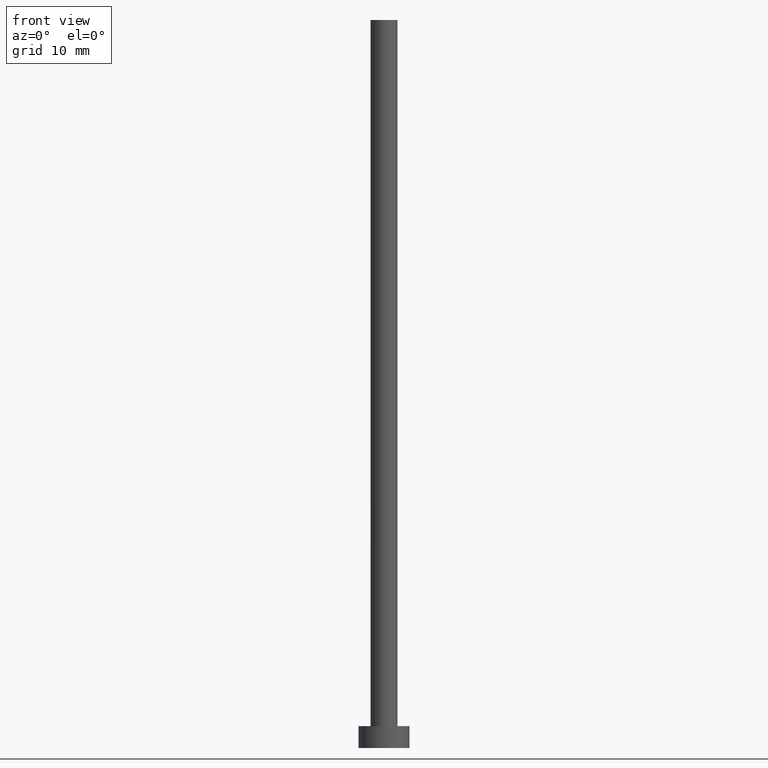
[diagram: clean part render]
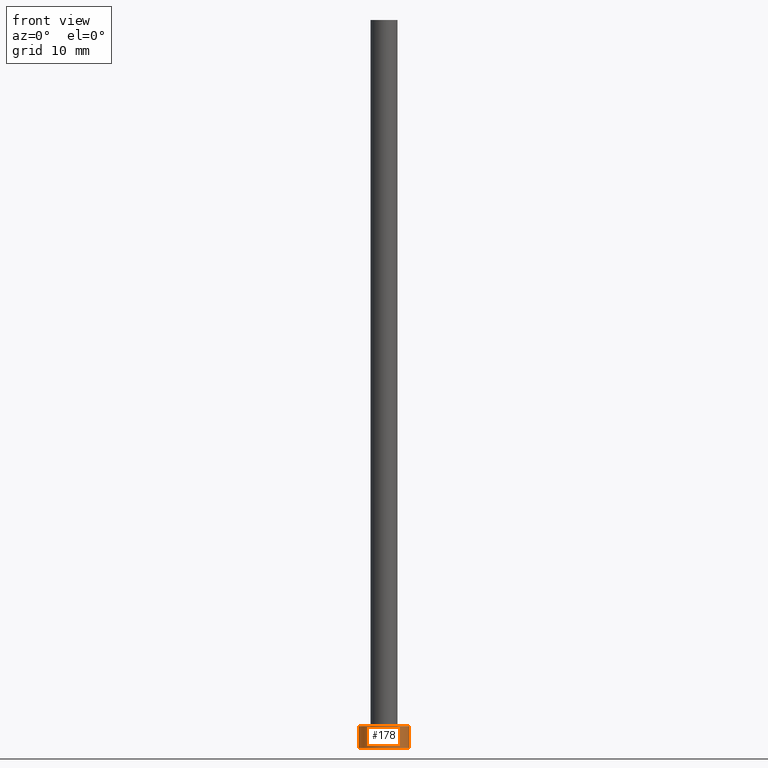
[diagram: same view with one face highlighted and labeled with its STEP entity id]
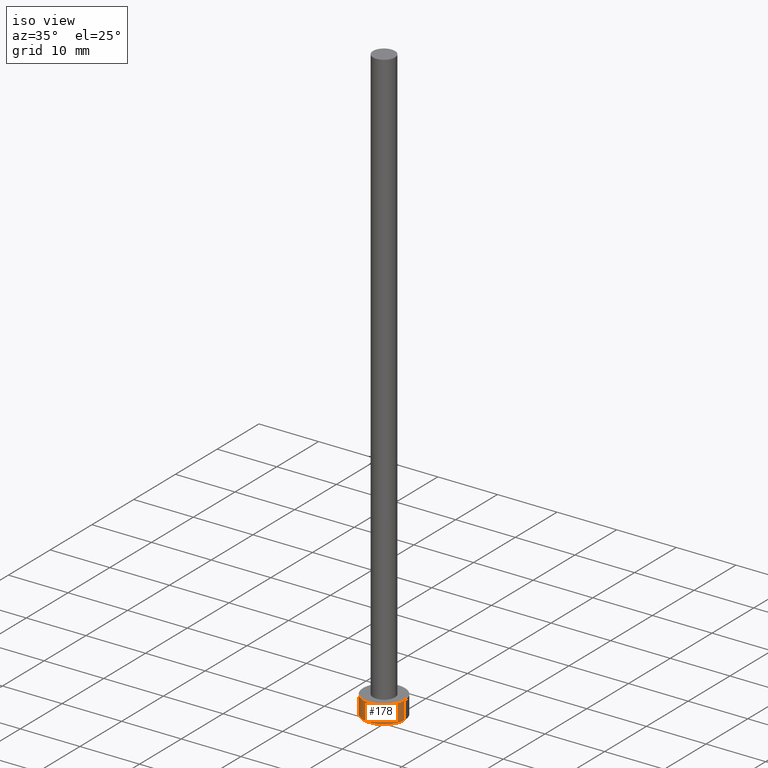
[diagram: same view with one face highlighted and labeled with its STEP entity id]
A machine part, front view. The second image highlights one B-rep face of the part: STEP entity #178.
A second angle (iso view) of the same face is appended — the face is thin or edge-on in the first view.
In plain terms, the highlighted cylindrical surface (edge-blend (fillet) strip) has radius 3.5 mm, axis along (-0, -0, -1).
Its self-contained STEP definition (entity closure, byte-faithful):
#2 = CARTESIAN_POINT ( 'NONE',  ( 3.500000000000000444, 4.286263797015737088E-16, 3.000000000000000000 ) ) ;
#14 = CIRCLE ( 'NONE', #211, 3.500000000000000444 ) ;
#22 = EDGE_CURVE ( 'NONE', #85, #244, #105, .T. ) ;
#25 = DIRECTION ( 'NONE',  ( 0.000000000000000000, 0.000000000000000000, 1.000000000000000000 ) ) ;
#46 = ORIENTED_EDGE ( 'NONE', *, *, #103, .F. ) ;
#51 = CARTESIAN_POINT ( 'NONE',  ( 0.000000000000000000, 0.000000000000000000, 0.000000000000000000 ) ) ;
#56 = DIRECTION ( 'NONE',  ( 1.000000000000000000, 0.000000000000000000, 0.000000000000000000 ) ) ;
#67 = CARTESIAN_POINT ( 'NONE',  ( -3.500000000000000444, 0.000000000000000000, 3.000000000000000000 ) ) ;
#69 = CARTESIAN_POINT ( 'NONE',  ( 3.500000000000000444, 4.286263797015737088E-16, 0.000000000000000000 ) ) ;
#71 = DIRECTION ( 'NONE',  ( -1.000000000000000000, 0.000000000000000000, 0.000000000000000000 ) ) ;
#73 = FACE_OUTER_BOUND ( 'NONE', #127, .T. ) ;
#85 = VERTEX_POINT ( 'NONE', #252 ) ;
#90 = CARTESIAN_POINT ( 'NONE',  ( 0.000000000000000000, 0.000000000000000000, 3.000000000000000000 ) ) ;
#93 = EDGE_CURVE ( 'NONE', #166, #168, #157, .T. ) ;
#103 = EDGE_CURVE ( 'NONE', #166, #85, #14, .T. ) ;
#105 = LINE ( 'NONE', #2, #123 ) ;
#108 = AXIS2_PLACEMENT_3D ( 'NONE', #195, #246, #71 ) ;
#123 = VECTOR ( 'NONE', #242, 1000.000000000000000 ) ;
#127 = EDGE_LOOP ( 'NONE', ( #202, #46, #221, #130 ) ) ;
#130 = ORIENTED_EDGE ( 'NONE', *, *, #185, .T. ) ;
#157 = LINE ( 'NONE', #229, #238 ) ;
#166 = VERTEX_POINT ( 'NONE', #67 ) ;
#168 = VERTEX_POINT ( 'NONE', #210 ) ;
#173 = CYLINDRICAL_SURFACE ( 'NONE', #108, 3.500000000000000444 ) ;
#178 = ADVANCED_FACE ( 'NONE', ( #73 ), #173, .T. ) ;
#179 = DIRECTION ( 'NONE',  ( -0.000000000000000000, -0.000000000000000000, -1.000000000000000000 ) ) ;
#185 = EDGE_CURVE ( 'NONE', #168, #244, #250, .T. ) ;
#195 = CARTESIAN_POINT ( 'NONE',  ( 0.000000000000000000, 0.000000000000000000, 3.000000000000000000 ) ) ;
#202 = ORIENTED_EDGE ( 'NONE', *, *, #22, .F. ) ;
#210 = CARTESIAN_POINT ( 'NONE',  ( -3.500000000000000444, 0.000000000000000000, 0.000000000000000000 ) ) ;
#211 = AXIS2_PLACEMENT_3D ( 'NONE', #90, #25, #56 ) ;
#213 = DIRECTION ( 'NONE',  ( 1.000000000000000000, 0.000000000000000000, 0.000000000000000000 ) ) ;
#215 = DIRECTION ( 'NONE',  ( 0.000000000000000000, 0.000000000000000000, 1.000000000000000000 ) ) ;
#221 = ORIENTED_EDGE ( 'NONE', *, *, #93, .T. ) ;
#226 = AXIS2_PLACEMENT_3D ( 'NONE', #51, #215, #213 ) ;
#229 = CARTESIAN_POINT ( 'NONE',  ( -3.500000000000000444, 0.000000000000000000, 3.000000000000000000 ) ) ;
#238 = VECTOR ( 'NONE', #179, 1000.000000000000000 ) ;
#242 = DIRECTION ( 'NONE',  ( -0.000000000000000000, -0.000000000000000000, -1.000000000000000000 ) ) ;
#244 = VERTEX_POINT ( 'NONE', #69 ) ;
#246 = DIRECTION ( 'NONE',  ( -0.000000000000000000, -0.000000000000000000, -1.000000000000000000 ) ) ;
#250 = CIRCLE ( 'NONE', #226, 3.500000000000000444 ) ;
#252 = CARTESIAN_POINT ( 'NONE',  ( 3.500000000000000444, 4.286263797015737088E-16, 3.000000000000000000 ) ) ;